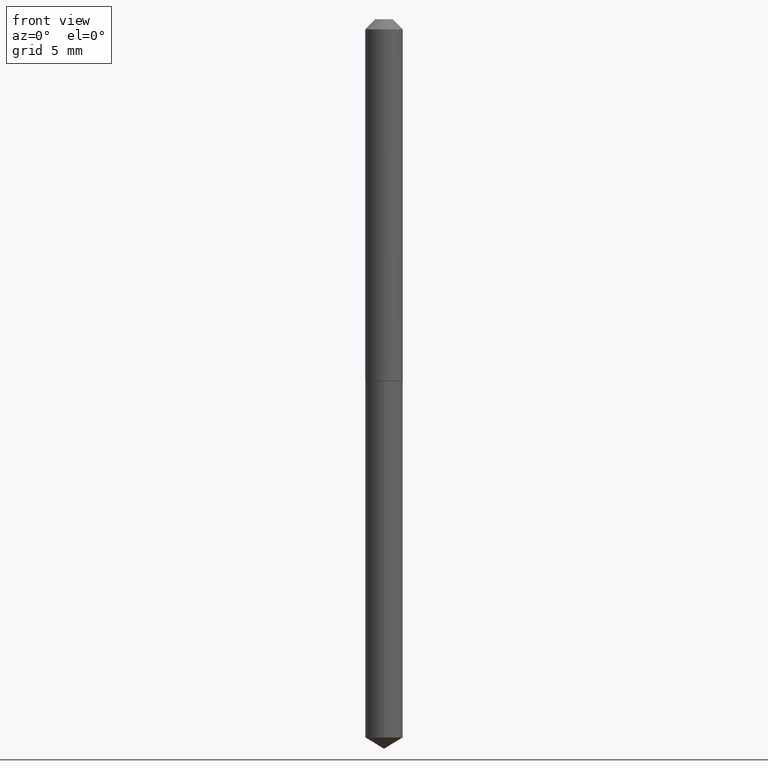
[diagram: clean part render]
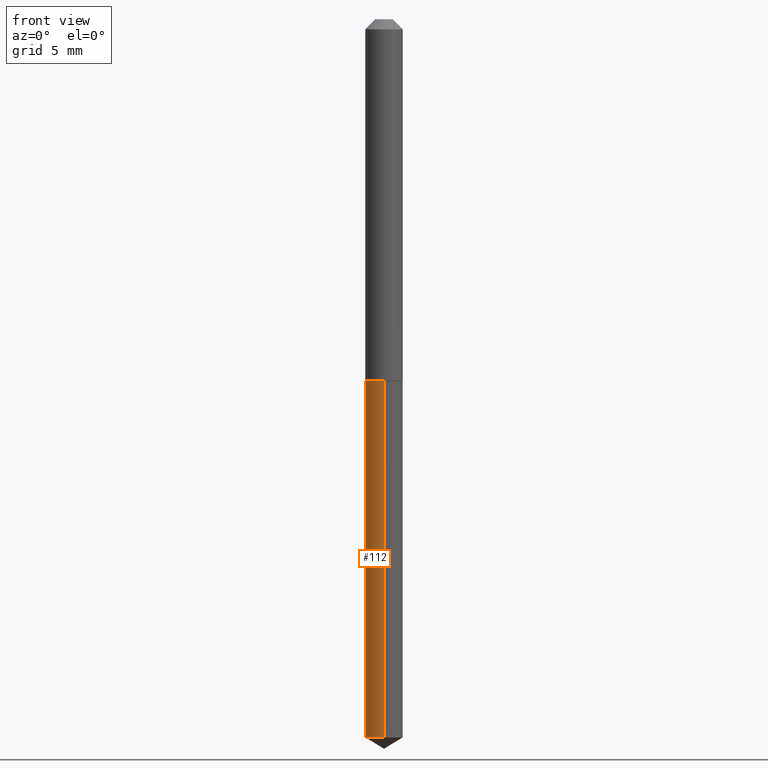
[diagram: same view with one face highlighted and labeled with its STEP entity id]
A machine part, front view. The second image highlights one B-rep face of the part: STEP entity #112.
In plain terms, the highlighted cylindrical surface (edge-blend (fillet) strip) has radius 1.4732 mm, axis along (-0, 0, 1).
Its self-contained STEP definition (entity closure, byte-faithful):
#10 = ORIENTED_EDGE ( 'NONE', *, *, #304, .T. ) ;
#36 = VERTEX_POINT ( 'NONE', #74 ) ;
#42 = AXIS2_PLACEMENT_3D ( 'NONE', #89, #283, #220 ) ;
#54 = CIRCLE ( 'NONE', #42, 0.05800000000000000294 ) ;
#64 = VERTEX_POINT ( 'NONE', #300 ) ;
#74 = CARTESIAN_POINT ( 'NONE',  ( -4.050118353057761076E-16, -0.05800000000000389566, -1.116000000000000103 ) ) ;
#75 = ORIENTED_EDGE ( 'NONE', *, *, #366, .T. ) ;
#77 = CARTESIAN_POINT ( 'NONE',  ( 5.417002991141352928E-29, -7.734266080612855846E-15, -2.215150084096401795 ) ) ;
#85 = EDGE_LOOP ( 'NONE', ( #199, #75, #10, #298 ) ) ;
#89 = CARTESIAN_POINT ( 'NONE',  ( 2.729143187702612729E-29, -3.896493174148951371E-15, -1.116000000000000103 ) ) ;
#111 = CARTESIAN_POINT ( 'NONE',  ( 4.121147867408853444E-16, 0.05799999999999611022, -1.116000000000000325 ) ) ;
#112 = ADVANCED_FACE ( 'NONE', ( #228 ), #171, .T. ) ;
#137 = AXIS2_PLACEMENT_3D ( 'NONE', #256, #367, #376 ) ;
#171 = CYLINDRICAL_SURFACE ( 'NONE', #137, 0.05800000000000000294 ) ;
#186 = DIRECTION ( 'NONE',  ( -2.445398351261919624E-29, 3.491582234303238035E-15, 1.000000000000000000 ) ) ;
#193 = LINE ( 'NONE', #311, #358 ) ;
#199 = ORIENTED_EDGE ( 'NONE', *, *, #230, .F. ) ;
#220 = DIRECTION ( 'NONE',  ( -6.982962677686265922E-15, -1.000000000000000000, 2.355041373848502747E-15 ) ) ;
#228 = FACE_OUTER_BOUND ( 'NONE', #85, .T. ) ;
#230 = EDGE_CURVE ( 'NONE', #239, #64, #242, .T. ) ;
#239 = VERTEX_POINT ( 'NONE', #356 ) ;
#240 = DIRECTION ( 'NONE',  ( -6.982962677686265922E-15, -1.000000000000000000, 4.710082747697005495E-15 ) ) ;
#242 = LINE ( 'NONE', #111, #274 ) ;
#243 = DIRECTION ( 'NONE',  ( -2.445398351261919624E-29, 3.491582234303237640E-15, 1.000000000000000000 ) ) ;
#256 = CARTESIAN_POINT ( 'NONE',  ( 2.729143187702612729E-29, -3.896493174148951371E-15, -1.116000000000000103 ) ) ;
#259 = EDGE_CURVE ( 'NONE', #64, #36, #54, .T. ) ;
#261 = AXIS2_PLACEMENT_3D ( 'NONE', #77, #243, #240 ) ;
#274 = VECTOR ( 'NONE', #186, 39.37007874015748143 ) ;
#283 = DIRECTION ( 'NONE',  ( -2.445398351261919624E-29, 3.491582234303237640E-15, 1.000000000000000000 ) ) ;
#298 = ORIENTED_EDGE ( 'NONE', *, *, #259, .F. ) ;
#299 = CARTESIAN_POINT ( 'NONE',  ( -4.050118353057491877E-16, -0.05800000000000771899, -2.215150084096401351 ) ) ;
#300 = CARTESIAN_POINT ( 'NONE',  ( 4.121147867409124122E-16, 0.05799999999999611022, -1.116000000000000325 ) ) ;
#304 = EDGE_CURVE ( 'NONE', #322, #36, #193, .T. ) ;
#311 = CARTESIAN_POINT ( 'NONE',  ( -4.050118353057761076E-16, -0.05800000000000389566, -1.116000000000000103 ) ) ;
#322 = VERTEX_POINT ( 'NONE', #299 ) ;
#338 = CIRCLE ( 'NONE', #261, 0.05800000000000000294 ) ;
#353 = DIRECTION ( 'NONE',  ( -2.445398351261919624E-29, 3.491582234303238035E-15, 1.000000000000000000 ) ) ;
#356 = CARTESIAN_POINT ( 'NONE',  ( 4.121147867409121164E-16, 0.05799999999999225220, -2.215150084096401795 ) ) ;
#358 = VECTOR ( 'NONE', #353, 39.37007874015748143 ) ;
#366 = EDGE_CURVE ( 'NONE', #239, #322, #338, .T. ) ;
#367 = DIRECTION ( 'NONE',  ( -2.445398351261919624E-29, 3.491582234303237640E-15, 1.000000000000000000 ) ) ;
#376 = DIRECTION ( 'NONE',  ( -6.982962677686265922E-15, -1.000000000000000000, 2.355041373848502747E-15 ) ) ;